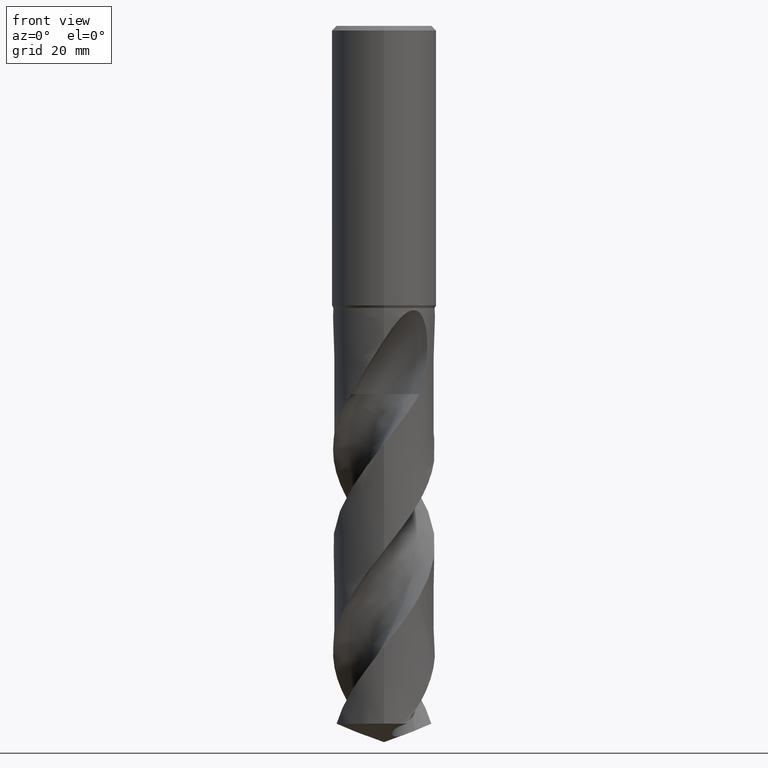
[diagram: clean part render]
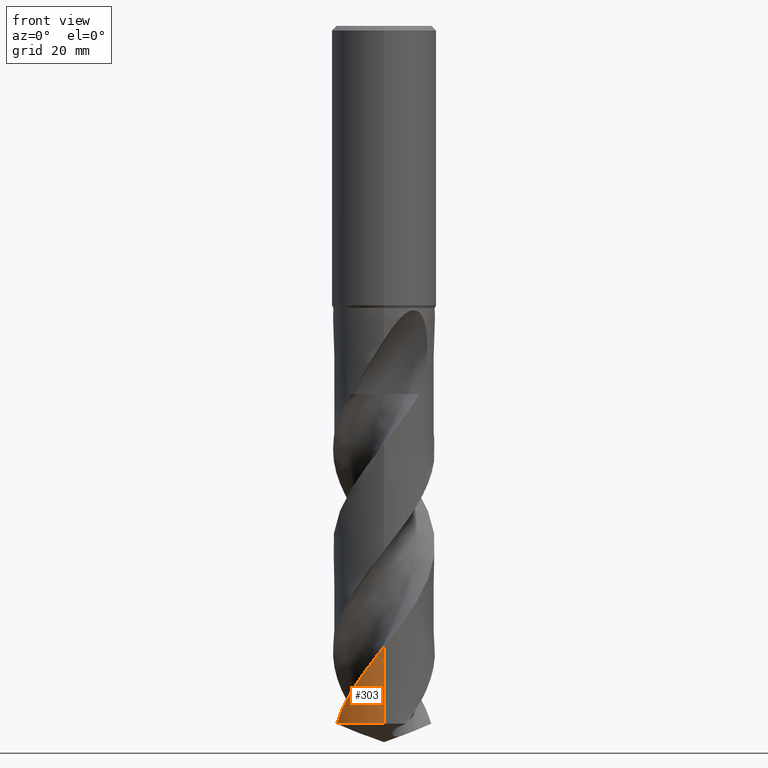
[diagram: same view with one face highlighted and labeled with its STEP entity id]
A machine part, front view. The second image highlights one B-rep face of the part: STEP entity #303.
In plain terms, the highlighted conical surface has half-angle 0 deg.
Its self-contained STEP definition (entity closure, byte-faithful):
#303=ADVANCED_FACE('',(#792),#793,.T.);
#313=VERTEX_POINT('',#804);
#331=EDGE_CURVE('',#313,#421,#824,.T.);
#377=EDGE_CURVE('',#421,#393,#875,.T.);
#393=VERTEX_POINT('',#893);
#421=VERTEX_POINT('',#923);
#709=EDGE_CURVE('',#313,#393,#1235,.T.);
#792=FACE_OUTER_BOUND('',#1391,.T.);
#793=CONICAL_SURFACE('',#1392,8.74995,1.43235159984931E-006);
#804=CARTESIAN_POINT('',(1.07070881923668E-015,-8.75,-119.815260450171));
#824=LINE('',#1490,#1491);
#875=B_SPLINE_CURVE_WITH_KNOTS('',3,(#1663,#1664,#1665,#1666,#1667,#1668,#1669,#1670,#1671,#1672,#1673,#1674,#1675,#1676,#1677,#1678,#1679,#1680,#1681,#1682,#1683,#1684,#1685,#1686,#1687,#1688,#1689,#1690,#1691,#1692,#1693,#1694,#1695,#1696,#1697,#1698,#1699,#1700,#1701,#1702,#1703,#1704,#1705,#1706,#1707,#1708,#1709,#1710,#1711,#1712,#1713,#1714,#1715,#1716,#1717,#1718,#1719,#1720,#1721,#1722,#1723,#1724,#1725,#1726,#1727,#1728,#1729,#1730,#1731,#1732,#1733,#1734,#1735,#1736,#1737,#1738,#1739,#1740,#1741,#1742,#1743,#1744,#1745,#1746,#1747,#1748,#1749,#1750,#1751,#1752,#1753,#1754,#1755,#1756,#1757,#1758),.UNSPECIFIED.,.F.,.F.,(4,2,2,2,2,2,2,2,2,2,2,2,2,2,2,2,2,2,2,2,2,2,2,2,2,2,2,2,2,2,2,2,2,2,2,2,2,2,2,2,2,2,2,2,2,2,2,4),(0.0,0.245507385937715,0.350571660644554,1.39572725614413,1.7512116317998,1.97614686400498,2.18570531646539,2.90763652407848,3.24173027248753,3.70690766796851,4.3511183427417,5.37181341861911,6.99202772068814,8.75473551307176,9.8223909562357,12.4353693303586,13.5149695308237,14.5839453902504,16.7292639533528,17.8100349580554,19.9438823498146,22.0974948302043,24.2480668377977,26.3975936922339,27.4770866892394,28.5406174047994,30.6845559205653,31.7651695485302,33.8998065264109,36.0538108730351,38.2023473007618,40.3517940889976,42.5096471819675,44.6540260477166,45.7343487976098,47.8665946934781,50.0208399046384,52.1672222359407,54.3168824060441,55.3175251611577,56.2465060231122,59.741848965142,61.0610370793442,63.3781294049847,64.2490927651339,65.0112058879898,65.094397942411,70.3596380678378),.UNSPECIFIED.);
#893=CARTESIAN_POINT('',(-8.13744065526408,-3.21629594130505,-119.815260450171));
#923=CARTESIAN_POINT('',(5.35353248924E-016,-8.74998104379688,-106.580937867135));
#1235=CIRCLE('',#5375,8.75);
#1391=EDGE_LOOP('',(#5523,#5524,#5525));
#1392=AXIS2_PLACEMENT_3D('',#5526,#5527,#5528);
#1490=CARTESIAN_POINT('',(1.07070269620491E-015,-8.74995,-84.9076302250854));
#1491=VECTOR('',#5592,1.0);
#1663=CARTESIAN_POINT('',(-6.08186943309706,6.29062365396806,-63.235));
#1664=CARTESIAN_POINT('',(-6.0469511397404,6.32438331567688,-63.3008642196098));
#1665=CARTESIAN_POINT('',(-6.01169387384533,6.3579087591601,-63.3667040283536));
#1666=CARTESIAN_POINT('',(-5.96078889035636,6.4055069625759,-63.4606122507189));
#1667=CARTESIAN_POINT('',(-5.94546612602131,6.4197320170628,-63.4887336144532));
#1668=CARTESIAN_POINT('',(-5.77689376715895,6.57510367454731,-63.7964182335438));
#1669=CARTESIAN_POINT('',(-5.61986938115472,6.71005726589124,-64.067261411877));
#1670=CARTESIAN_POINT('',(-5.39333101928893,6.89046403370956,-64.4346657416091));
#1671=CARTESIAN_POINT('',(-5.33508238939867,6.93566993502438,-64.5273143604014));
#1672=CARTESIAN_POINT('',(-5.23841689245175,7.00873108781811,-64.6785128787296));
#1673=CARTESIAN_POINT('',(-5.20066220418053,7.03679304292886,-64.7369516106116));
#1674=CARTESIAN_POINT('',(-5.12710835866557,7.09054389196633,-64.8497869063541));
#1675=CARTESIAN_POINT('',(-5.09140179274385,7.11622730940027,-64.9041103587308));
#1676=CARTESIAN_POINT('',(-4.931615376455,7.229337483473,-65.1455740014105));
#1677=CARTESIAN_POINT('',(-4.8058804744549,7.31358327693036,-65.3319736681571));
#1678=CARTESIAN_POINT('',(-4.61491717777977,7.43429817009919,-65.6131355291182));
#1679=CARTESIAN_POINT('',(-4.55417461981925,7.47165978887842,-65.7021895700378));
#1680=CARTESIAN_POINT('',(-4.40810659691875,7.5590713937031,-65.9156068537202));
#1681=CARTESIAN_POINT('',(-4.32284856094712,7.60814257891526,-66.0396410500222));
#1682=CARTESIAN_POINT('',(-4.11732401261019,7.721878525783,-66.33734226343));
#1683=CARTESIAN_POINT('',(-3.99662547642531,7.78502685849317,-66.5109601435512));
#1684=CARTESIAN_POINT('',(-3.68149873164662,7.94066559570674,-66.9590563827829));
#1685=CARTESIAN_POINT('',(-3.48454365952162,8.02906177135658,-67.2338248923896));
#1686=CARTESIAN_POINT('',(-2.96631653643826,8.23892138626602,-67.9433538890273));
#1687=CARTESIAN_POINT('',(-2.64135024342654,8.34879770657279,-68.3745974656544));
#1688=CARTESIAN_POINT('',(-1.94973061900555,8.53811369184434,-69.2813541294336));
#1689=CARTESIAN_POINT('',(-1.58343601225544,8.61356585626273,-69.7537105830248));
#1690=CARTESIAN_POINT('',(-0.989423328932582,8.69675214728634,-70.513604482319));
#1691=CARTESIAN_POINT('',(-0.764296643250713,8.71941761225799,-70.8003492141118));
#1692=CARTESIAN_POINT('',(0.0136838135878846,8.76740065319282,-71.7888179492103));
#1693=CARTESIAN_POINT('',(0.56832329596561,8.74901878407041,-72.4879786145876));
#1694=CARTESIAN_POINT('',(1.3449189153175,8.64898492883878,-73.4787452159072));
#1695=CARTESIAN_POINT('',(1.57070264682781,8.61084288859849,-73.7683052753515));
#1696=CARTESIAN_POINT('',(2.01648424318467,8.51742343728163,-74.3449063054532));
#1697=CARTESIAN_POINT('',(2.23630284041407,8.46236365602733,-74.6317121211777));
#1698=CARTESIAN_POINT('',(2.88990635864361,8.27141903290686,-75.4946949944495));
#1699=CARTESIAN_POINT('',(3.3156792756227,8.11014469479738,-76.070187953016));
#1700=CARTESIAN_POINT('',(3.93434653549782,7.81887590722706,-76.936088591175));
#1701=CARTESIAN_POINT('',(4.1377374055473,7.71317602307682,-77.2259808179137));
#1702=CARTESIAN_POINT('',(4.72978260520718,7.37532050161368,-78.0885676501918));
#1703=CARTESIAN_POINT('',(5.10462887895006,7.12100011098209,-78.6602519777641));
#1704=CARTESIAN_POINT('',(5.81465576531498,6.55434894215413,-79.8113522498303));
#1705=CARTESIAN_POINT('',(6.14861489427896,6.24215829473489,-80.388715758733));
#1706=CARTESIAN_POINT('',(6.76450180429577,5.56874862974643,-81.5438396630749));
#1707=CARTESIAN_POINT('',(7.04535247811715,5.20885908467647,-82.1196848256906));
#1708=CARTESIAN_POINT('',(7.5481918572921,4.44902588765169,-83.2742335727208));
#1709=CARTESIAN_POINT('',(7.76958568923962,4.0500402021113,-83.8507073647394));
#1710=CARTESIAN_POINT('',(8.0540292232344,3.42733332392809,-84.7173950227698));
#1711=CARTESIAN_POINT('',(8.14092768247589,3.21548254540231,-85.0069489155959));
#1712=CARTESIAN_POINT('',(8.29676501003112,2.78858351030627,-85.5820635232352));
#1713=CARTESIAN_POINT('',(8.36585655676432,2.57388800865619,-85.8673170979798));
#1714=CARTESIAN_POINT('',(8.54895906403841,1.91922711876685,-86.7284907226256));
#1715=CARTESIAN_POINT('',(8.63709800229521,1.47268974968778,-87.3037081690975));
#1716=CARTESIAN_POINT('',(8.71688945219652,0.793743889287,-88.1693570324932));
#1717=CARTESIAN_POINT('',(8.73468768585116,0.565213562522589,-88.4592722167705));
#1718=CARTESIAN_POINT('',(8.76088967356746,-0.116169465816523,-89.3222298787584));
#1719=CARTESIAN_POINT('',(8.74314435955474,-0.569036246803677,-89.8943389300833));
#1720=CARTESIAN_POINT('',(8.6373782905467,-1.47167612533566,-91.0459857168135));
#1721=CARTESIAN_POINT('',(8.54884317358712,-1.92034627534931,-91.6235264923962));
#1722=CARTESIAN_POINT('',(8.30273017522409,-2.79894480314114,-92.7783971004299));
#1723=CARTESIAN_POINT('',(8.1457938168206,-3.22726047841483,-93.3538208056576));
#1724=CARTESIAN_POINT('',(7.76673947991715,-4.05550608650931,-94.5080111462694));
#1725=CARTESIAN_POINT('',(7.54505711999457,-4.4544072889608,-95.0845539574365));
#1726=CARTESIAN_POINT('',(7.04042120636769,-5.215722158322,-96.2408598953444));
#1727=CARTESIAN_POINT('',(6.75814944807534,-5.57660733797301,-96.8185444505766));
#1728=CARTESIAN_POINT('',(6.14181475544042,-6.24873341277387,-97.973860393479));
#1729=CARTESIAN_POINT('',(5.80891291410941,-6.5593634378046,-98.5492655798768));
#1730=CARTESIAN_POINT('',(5.27418197511157,-6.985518452004,-99.415085729937));
#1731=CARTESIAN_POINT('',(5.08947218339199,-7.12122034507693,-99.7049656319466));
#1732=CARTESIAN_POINT('',(4.52489338253435,-7.50279372557001,-100.567341567117));
#1733=CARTESIAN_POINT('',(4.1312445705883,-7.72651839791604,-101.138967443609));
#1734=CARTESIAN_POINT('',(3.30903650493038,-8.11300256718905,-102.290209920936));
#1735=CARTESIAN_POINT('',(2.88110157640309,-8.27466664491174,-102.867871051016));
#1736=CARTESIAN_POINT('',(2.00517739388076,-8.52928048852331,-104.022387319789));
#1737=CARTESIAN_POINT('',(1.55893003441526,-8.62199673376495,-104.59736122784));
#1738=CARTESIAN_POINT('',(0.655677343218739,-8.73726726780765,-105.751221411342));
#1739=CARTESIAN_POINT('',(0.199751170593909,-8.75957279491682,-106.327898872506));
#1740=CARTESIAN_POINT('',(-0.468094298187817,-8.74002909935699,-107.17373847657));
#1741=CARTESIAN_POINT('',(-0.679949724521017,-8.72610534480909,-107.442254452877));
#1742=CARTESIAN_POINT('',(-1.08714924866235,-8.68441956682777,-107.960279209299));
#1743=CARTESIAN_POINT('',(-1.28239540733151,-8.65774041111131,-108.209536055629));
#1744=CARTESIAN_POINT('',(-2.20703240870177,-8.49944129846142,-109.397757922129));
#1745=CARTESIAN_POINT('',(-2.9189716374759,-8.28201910513629,-110.333520350861));
#1746=CARTESIAN_POINT('',(-3.85026182304533,-7.86232263401528,-111.62615058281));
#1747=CARTESIAN_POINT('',(-4.09966292361018,-7.73519862420138,-111.979970120141));
#1748=CARTESIAN_POINT('',(-4.76898963767318,-7.35257888450787,-112.956813584554));
#1749=CARTESIAN_POINT('',(-5.17429777376951,-7.07322544784562,-113.57878037793));
#1750=CARTESIAN_POINT('',(-5.69680384627968,-6.64401364130755,-114.43508638268));
#1751=CARTESIAN_POINT('',(-5.83582492762374,-6.52224407368795,-114.668923794745));
#1752=CARTESIAN_POINT('',(-6.0891096053084,-6.285799327279,-115.107471232582));
#1753=CARTESIAN_POINT('',(-6.20423236127702,-6.17219876872902,-115.312060184347));
#1754=CARTESIAN_POINT('',(-6.3283599981415,-6.04272820352643,-115.539050971754));
#1755=CARTESIAN_POINT('',(-6.34053719352665,-6.02994967205847,-115.561390240879));
#1756=CARTESIAN_POINT('',(-7.12092584054977,-5.20604616901402,-116.997674512639));
#1757=CARTESIAN_POINT('',(-7.72679317395198,-4.25525561690706,-118.401274615824));
#1758=CARTESIAN_POINT('',(-8.1374406552641,-3.21629594130502,-119.815260450171));
#5375=AXIS2_PLACEMENT_3D('',#5999,#6000,#6001);
#5523=ORIENTED_EDGE('',*,*,#331,.T.);
#5524=ORIENTED_EDGE('',*,*,#377,.T.);
#5525=ORIENTED_EDGE('',*,*,#709,.F.);
#5526=CARTESIAN_POINT('',(0.0,0.0,-84.9076302250854));
#5527=DIRECTION('',(0.0,-0.0,-1.0));
#5528=DIRECTION('',(0.0,1.0,0.0));
#5592=DIRECTION('',(-1.75406687008252E-022,1.43235159984882E-006,0.999999999998974));
#5999=CARTESIAN_POINT('',(0.0,0.0,-119.815260450171));
#6000=DIRECTION('',(0.0,0.0,-1.0));
#6001=DIRECTION('',(0.0,1.0,0.0));